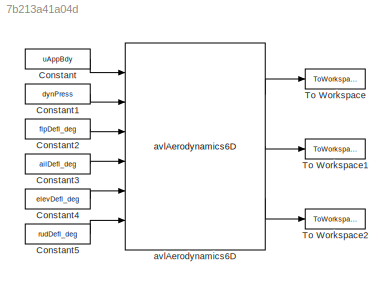
MODEL slx_7b213a41a04d
KIND model
CONFIG AbsTol = auto
CONFIG EnableMultiTasking = off
CONFIG FixedStep = auto
CONFIG MaxStep = auto
CONFIG MinStep = auto
CONFIG RelTol = 1e-3
CONFIG SampleTimeConstraint = Unconstrained
CONFIG Solver = VariableStepAuto
CONFIG SolverName = VariableStepAuto
CONFIG StartTime = 0.0
CONFIG StopTime = 0
BLOCK [Constant] Constant
  Value = uAppBdy
BLOCK [Constant] Constant1
  Value = dynPress
BLOCK [Constant] Constant2
  Value = flpDefl_deg
BLOCK [Constant] Constant3
  Value = ailDefl_deg
BLOCK [Constant] Constant4
  Value = elevDefl_deg
BLOCK [Constant] Constant5
  Value = rudDefl_deg
BLOCK [ToWorkspace] To Workspace
  FixptAsFi = on
  MaxDataPoints = inf
  Ports = [1]
  SampleTime = -1
  Save2DSignal = 3-D array (concatenate along third dimension)
  SaveFormat = Timeseries
  VariableName = FLift
BLOCK [ToWorkspace] To Workspace1
  FixptAsFi = on
  MaxDataPoints = inf
  Ports = [1]
  SampleTime = -1
  Save2DSignal = 3-D array (concatenate along third dimension)
  SaveFormat = Timeseries
  VariableName = FDrag
BLOCK [ToWorkspace] To Workspace2
  FixptAsFi = on
  MaxDataPoints = inf
  Ports = [1]
  SampleTime = -1
  Save2DSignal = 3-D array (concatenate along third dimension)
  SaveFormat = Timeseries
  VariableName = M
BLOCK [Reference] avlAerodynamics6D  REF=avlAerodynamics6D/avlAerodynamics6D
  Ports = [6, 3]
  SourceBlock = avlAerodynamics6D/avlAerodynamics6D
LINE Constant1:1 -> avlAerodynamics6D:2
LINE Constant2:1 -> avlAerodynamics6D:3
LINE Constant3:1 -> avlAerodynamics6D:4
LINE Constant4:1 -> avlAerodynamics6D:5
LINE Constant5:1 -> avlAerodynamics6D:6
LINE Constant:1 -> avlAerodynamics6D:1
LINE avlAerodynamics6D:1 -> To Workspace:1
LINE avlAerodynamics6D:2 -> To Workspace1:1
LINE avlAerodynamics6D:3 -> To Workspace2:1
